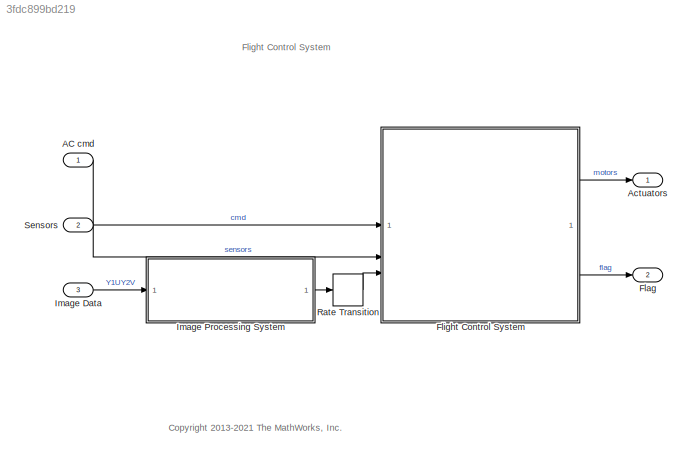
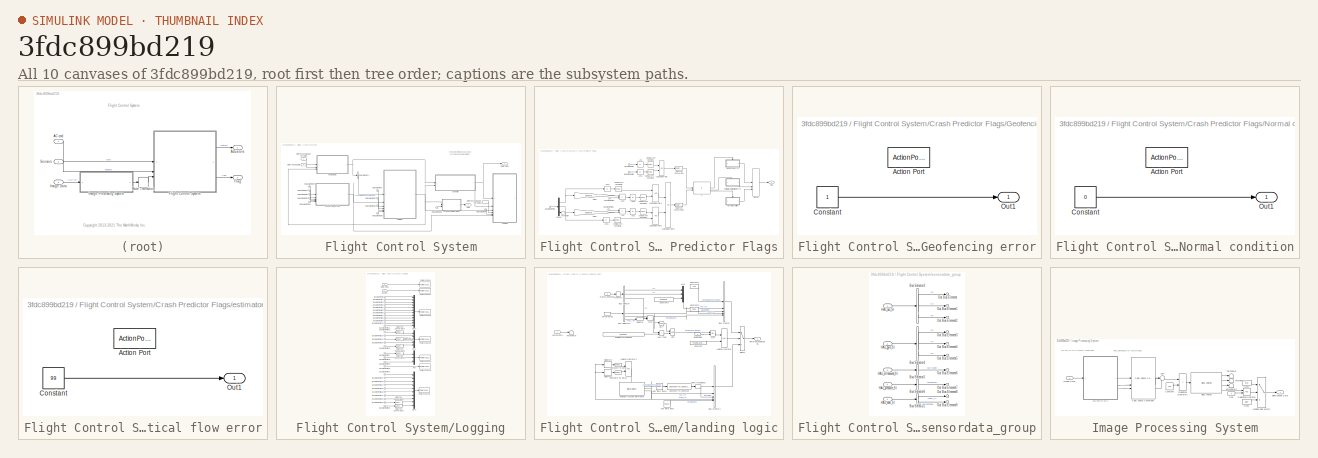
[diagram: thumbnail index - all 10 canvases of the model, root first then tree order]
MODEL slx_3fdc899bd219
KIND model
CONFIG AbsTol = auto
CONFIG EnableMultiTasking = on
CONFIG FixedStep = Ts
CONFIG MaxStep = auto
CONFIG MinStep = auto
CONFIG RelTol = 1e-3
CONFIG SampleTimeConstraint = Unconstrained
CONFIG SolverName = ode3
CONFIG StartTime = 0
CONFIG StopTime = TFinal
BLOCK [Inport] AC cmd
  BusOutputAsStruct = on
  OutDataTypeStr = Bus: CommandBus
BLOCK [Outport] Actuators
  OutDataTypeStr = single
  PortDimensions = 4
  VectorParamsAs1DForOutWhenUnconnected = off
BLOCK [Outport] Flag
  OutDataTypeStr = uint8
  Port = 2
  PortDimensions = 1
  VectorParamsAs1DForOutWhenUnconnected = off
BLOCK [SubSystem] Flight Control System
  RTWSystemCode = Reusable function
  SystemSampleTime = Ts
  TreatAsAtomicUnit = on
BLOCK [BusSelector] Flight Control System/Bus Selector1
  OutputSignals = controlModePosVSOrient
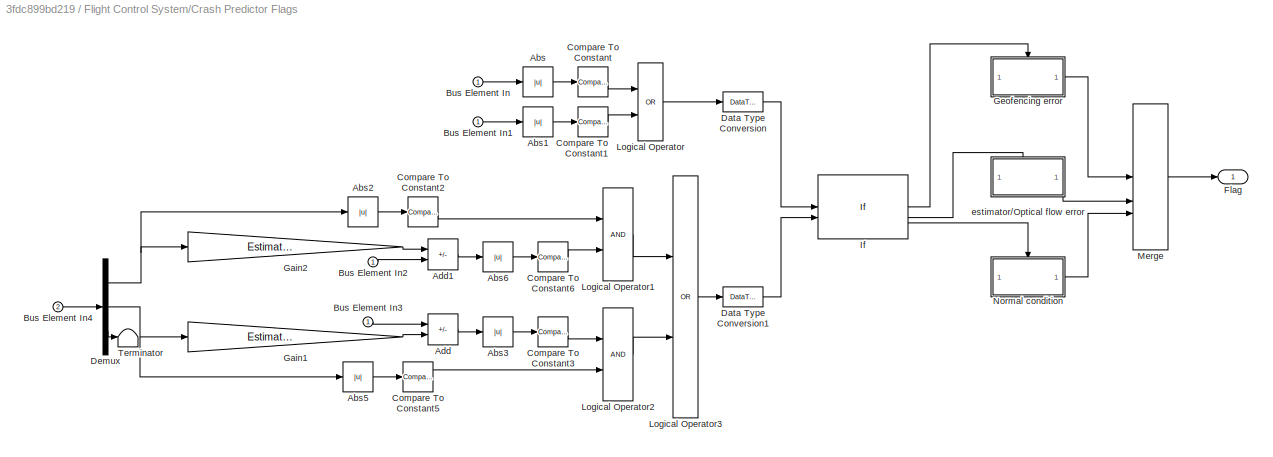
BLOCK [SubSystem] Flight Control System/Crash Predictor Flags
BLOCK [Abs] Flight Control System/Crash Predictor Flags/Abs
  SaturateOnIntegerOverflow = off
BLOCK [Abs] Flight Control System/Crash Predictor Flags/Abs1
  SaturateOnIntegerOverflow = off
BLOCK [Abs] Flight Control System/Crash Predictor Flags/Abs2
  SaturateOnIntegerOverflow = off
BLOCK [Abs] Flight Control System/Crash Predictor Flags/Abs3
  SaturateOnIntegerOverflow = off
BLOCK [Abs] Flight Control System/Crash Predictor Flags/Abs5
  SaturateOnIntegerOverflow = off
BLOCK [Abs] Flight Control System/Crash Predictor Flags/Abs6
  SaturateOnIntegerOverflow = off
BLOCK [Sum] Flight Control System/Crash Predictor Flags/Add
  IconShape = rectangular
  Inputs = -+
BLOCK [Sum] Flight Control System/Crash Predictor Flags/Add1
  IconShape = rectangular
  Inputs = +-
BLOCK [Inport] Flight Control System/Crash Predictor Flags/Bus Element In
BLOCK [Inport] Flight Control System/Crash Predictor Flags/Bus Element In1
BLOCK [Inport] Flight Control System/Crash Predictor Flags/Bus Element In2
BLOCK [Inport] Flight Control System/Crash Predictor Flags/Bus Element In3
BLOCK [Inport] Flight Control System/Crash Predictor Flags/Bus Element In4
  Port = 2
BLOCK [Reference] Flight Control System/Crash Predictor Flags/Compare To Constant  REF=simulink/Logic and Bit
Operations/Compare
To Constant
  SourceBlock = simulink/Logic and Bit\nOperations/Compare\nTo Constant
  SourceType = Compare To Constant
BLOCK [Reference] Flight Control System/Crash Predictor Flags/Compare To Constant1  REF=simulink/Logic and Bit
Operations/Compare
To Constant
  SourceBlock = simulink/Logic and Bit\nOperations/Compare\nTo Constant
  SourceType = Compare To Constant
BLOCK [Reference] Flight Control System/Crash Predictor Flags/Compare To Constant2  REF=simulink/Logic and Bit
Operations/Compare
To Constant
  SourceBlock = simulink/Logic and Bit\nOperations/Compare\nTo Constant
  SourceType = Compare To Constant
BLOCK [Reference] Flight Control System/Crash Predictor Flags/Compare To Constant3  REF=simulink/Logic and Bit
Operations/Compare
To Constant
  SourceBlock = simulink/Logic and Bit\nOperations/Compare\nTo Constant
  SourceType = Compare To Constant
BLOCK [Reference] Flight Control System/Crash Predictor Flags/Compare To Constant5  REF=simulink/Logic and Bit
Operations/Compare
To Constant
  SourceBlock = simulink/Logic and Bit\nOperations/Compare\nTo Constant
  SourceType = Compare To Constant
BLOCK [Reference] Flight Control System/Crash Predictor Flags/Compare To Constant6  REF=simulink/Logic and Bit
Operations/Compare
To Constant
  SourceBlock = simulink/Logic and Bit\nOperations/Compare\nTo Constant
  SourceType = Compare To Constant
BLOCK [DataTypeConversion] Flight Control System/Crash Predictor Flags/Data Type Conversion
  OutDataTypeStr = uint8
  RndMeth = Nearest
  SaturateOnIntegerOverflow = off
BLOCK [DataTypeConversion] Flight Control System/Crash Predictor Flags/Data Type Conversion1
  OutDataTypeStr = uint8
  RndMeth = Nearest
  SaturateOnIntegerOverflow = off
BLOCK [Demux] Flight Control System/Crash Predictor Flags/Demux
  Outputs = 3
BLOCK [Outport] Flight Control System/Crash Predictor Flags/Flag
  VectorParamsAs1DForOutWhenUnconnected = off
BLOCK [Gain] Flight Control System/Crash Predictor Flags/Gain1
  Gain = Estimator.pos.visDeltaXYMax
BLOCK [Gain] Flight Control System/Crash Predictor Flags/Gain2
  Gain = Estimator.pos.visDeltaXYMax
BLOCK [SubSystem] Flight Control System/Crash Predictor Flags/Geofencing error
  TreatAsAtomicUnit = on
BLOCK [ActionPort] Flight Control System/Crash Predictor Flags/Geofencing error/Action Port
  ActionPortLabel = if(u1 > 0)
BLOCK [Constant] Flight Control System/Crash Predictor Flags/Geofencing error/Constant
  OutDataTypeStr = uint8
BLOCK [Outport] Flight Control System/Crash Predictor Flags/Geofencing error/Out1
  VectorParamsAs1DForOutWhenUnconnected = off
BLOCK [If] Flight Control System/Crash Predictor Flags/If
  ElseIfExpressions = u2 > 0
  NumInputs = 2
BLOCK [Logic] Flight Control System/Crash Predictor Flags/Logical Operator
  AllPortsSameDT = off
  Operator = OR
BLOCK [Logic] Flight Control System/Crash Predictor Flags/Logical Operator1
  AllPortsSameDT = off
  OutDataTypeStr = boolean
BLOCK [Logic] Flight Control System/Crash Predictor Flags/Logical Operator2
  AllPortsSameDT = off
  OutDataTypeStr = boolean
BLOCK [Logic] Flight Control System/Crash Predictor Flags/Logical Operator3
  AllPortsSameDT = off
  Operator = OR
BLOCK [Merge] Flight Control System/Crash Predictor Flags/Merge
  InitialOutput = 0
  Inputs = 3
BLOCK [SubSystem] Flight Control System/Crash Predictor Flags/Normal condition
  TreatAsAtomicUnit = on
BLOCK [ActionPort] Flight Control System/Crash Predictor Flags/Normal condition/Action Port
  ActionPortLabel = else
BLOCK [Constant] Flight Control System/Crash Predictor Flags/Normal condition/Constant
  OutDataTypeStr = uint8
  Value = 0
BLOCK [Outport] Flight Control System/Crash Predictor Flags/Normal condition/Out1
  VectorParamsAs1DForOutWhenUnconnected = off
BLOCK [Terminator] Flight Control System/Crash Predictor Flags/Terminator
BLOCK [SubSystem] Flight Control System/Crash Predictor Flags/estimator//Optical flow error
  TreatAsAtomicUnit = on
BLOCK [ActionPort] Flight Control System/Crash Predictor Flags/estimator//Optical flow error/Action Port
  ActionPortLabel = elseif(u2 > 0)
BLOCK [Constant] Flight Control System/Crash Predictor Flags/estimator//Optical flow error/Constant
  OutDataTypeStr = uint8
  Value = 99
BLOCK [Outport] Flight Control System/Crash Predictor Flags/estimator//Optical flow error/Out1
  VectorParamsAs1DForOutWhenUnconnected = off
BLOCK [Outport] Flight Control System/Flag
  Port = 2
  VectorParamsAs1DForOutWhenUnconnected = off
BLOCK [Inport] Flight Control System/In Bus Element
  Port = 2
BLOCK [Inport] Flight Control System/In Bus Element1
  Port = 2
BLOCK [Inport] Flight Control System/In Bus Element10
  Port = 2
BLOCK [Inport] Flight Control System/In Bus Element2
  Port = 2
BLOCK [Inport] Flight Control System/In Bus Element3
  Port = 2
BLOCK [Inport] Flight Control System/In Bus Element4
  Port = 2
BLOCK [Inport] Flight Control System/In Bus Element5
  Port = 2
BLOCK [Inport] Flight Control System/In Bus Element6
  Port = 2
BLOCK [Inport] Flight Control System/In Bus Element7
  Port = 2
BLOCK [Inport] Flight Control System/In Bus Element8
  Port = 2
BLOCK [Inport] Flight Control System/In Bus Element9
  Port = 2
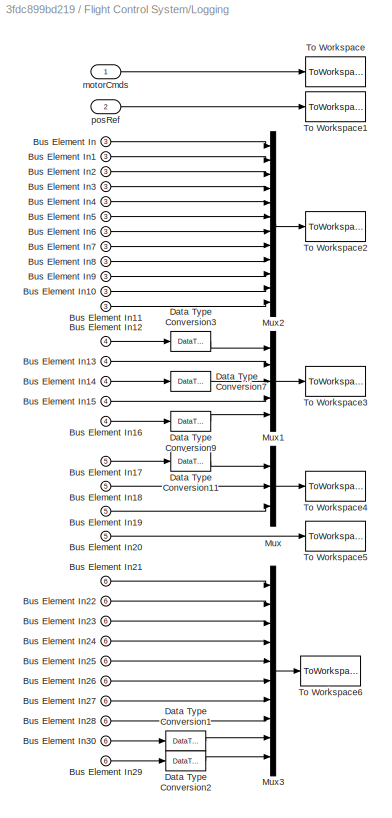
BLOCK [SubSystem] Flight Control System/Logging
  RTWFcnNameOpts = Use subsystem name
  RTWSystemCode = Reusable function
  TreatAsAtomicUnit = on
BLOCK [Inport] Flight Control System/Logging/Bus Element In
  Port = 3
BLOCK [Inport] Flight Control System/Logging/Bus Element In1
  Port = 3
BLOCK [Inport] Flight Control System/Logging/Bus Element In10
  Port = 3
BLOCK [Inport] Flight Control System/Logging/Bus Element In11
  Port = 3
BLOCK [Inport] Flight Control System/Logging/Bus Element In12
  Port = 4
BLOCK [Inport] Flight Control System/Logging/Bus Element In13
  Port = 4
BLOCK [Inport] Flight Control System/Logging/Bus Element In14
  Port = 4
BLOCK [Inport] Flight Control System/Logging/Bus Element In15
  Port = 4
BLOCK [Inport] Flight Control System/Logging/Bus Element In16
  Port = 4
BLOCK [Inport] Flight Control System/Logging/Bus Element In17
  Port = 5
BLOCK [Inport] Flight Control System/Logging/Bus Element In18
  Port = 5
BLOCK [Inport] Flight Control System/Logging/Bus Element In19
  Port = 5
BLOCK [Inport] Flight Control System/Logging/Bus Element In2
  Port = 3
BLOCK [Inport] Flight Control System/Logging/Bus Element In20
  Port = 5
BLOCK [Inport] Flight Control System/Logging/Bus Element In21
  Port = 6
BLOCK [Inport] Flight Control System/Logging/Bus Element In22
  Port = 6
BLOCK [Inport] Flight Control System/Logging/Bus Element In23
  Port = 6
BLOCK [Inport] Flight Control System/Logging/Bus Element In24
  Port = 6
BLOCK [Inport] Flight Control System/Logging/Bus Element In25
  Port = 6
BLOCK [Inport] Flight Control System/Logging/Bus Element In26
  Port = 6
BLOCK [Inport] Flight Control System/Logging/Bus Element In27
  Port = 6
BLOCK [Inport] Flight Control System/Logging/Bus Element In28
  Port = 6
BLOCK [Inport] Flight Control System/Logging/Bus Element In29
  Port = 6
BLOCK [Inport] Flight Control System/Logging/Bus Element In3
  Port = 3
BLOCK [Inport] Flight Control System/Logging/Bus Element In30
  Port = 6
BLOCK [Inport] Flight Control System/Logging/Bus Element In4
  Port = 3
BLOCK [Inport] Flight Control System/Logging/Bus Element In5
  Port = 3
BLOCK [Inport] Flight Control System/Logging/Bus Element In6
  Port = 3
BLOCK [Inport] Flight Control System/Logging/Bus Element In7
  Port = 3
BLOCK [Inport] Flight Control System/Logging/Bus Element In8
  Port = 3
BLOCK [Inport] Flight Control System/Logging/Bus Element In9
  Port = 3
BLOCK [DataTypeConversion] Flight Control System/Logging/Data Type Conversion1
  OutDataTypeStr = single
  RndMeth = Floor
  SaturateOnIntegerOverflow = off
BLOCK [DataTypeConversion] Flight Control System/Logging/Data Type Conversion11
  OutDataTypeStr = single
  RndMeth = Floor
  SaturateOnIntegerOverflow = off
BLOCK [DataTypeConversion] Flight Control System/Logging/Data Type Conversion2
  OutDataTypeStr = single
  RndMeth = Floor
  SaturateOnIntegerOverflow = off
BLOCK [DataTypeConversion] Flight Control System/Logging/Data Type Conversion3
  OutDataTypeStr = single
  RndMeth = Floor
  SaturateOnIntegerOverflow = off
BLOCK [DataTypeConversion] Flight Control System/Logging/Data Type Conversion7
  OutDataTypeStr = single
  RndMeth = Floor
  SaturateOnIntegerOverflow = off
BLOCK [DataTypeConversion] Flight Control System/Logging/Data Type Conversion9
  OutDataTypeStr = single
  RndMeth = Floor
  SaturateOnIntegerOverflow = off
BLOCK [Mux] Flight Control System/Logging/Mux
  DisplayOption = bar
  Inputs = 3
BLOCK [Mux] Flight Control System/Logging/Mux1
  DisplayOption = bar
  Inputs = 5
BLOCK [Mux] Flight Control System/Logging/Mux2
  DisplayOption = bar
  Inputs = 12
BLOCK [Mux] Flight Control System/Logging/Mux3
  DisplayOption = bar
  Inputs = 10
BLOCK [ToWorkspace] Flight Control System/Logging/To Workspace
  FixptAsFi = on
  MaxDataPoints = inf
  SampleTime = -1
  SaveFormat = Structure With Time
  VariableName = motor
BLOCK [ToWorkspace] Flight Control System/Logging/To Workspace1
  FixptAsFi = on
  MaxDataPoints = inf
  SampleTime = -1
  SaveFormat = Structure With Time
  VariableName = posref
BLOCK [ToWorkspace] Flight Control System/Logging/To Workspace2
  FixptAsFi = on
  MaxDataPoints = inf
  SampleTime = -1
  SaveFormat = Structure With Time
  VariableName = estim
BLOCK [ToWorkspace] Flight Control System/Logging/To Workspace3
  FixptAsFi = on
  MaxDataPoints = inf
  SampleTime = -1
  SaveFormat = Structure With Time
  VariableName = cmd
BLOCK [ToWorkspace] Flight Control System/Logging/To Workspace4
  FixptAsFi = on
  MaxDataPoints = inf
  SampleTime = -1
  SaveFormat = Structure With Time
  VariableName = optical
BLOCK [ToWorkspace] Flight Control System/Logging/To Workspace5
  Decimation = 100
  FixptAsFi = on
  MaxDataPoints = inf
  SampleTime = -1
  SaveFormat = Structure With Time
  VariableName = calib
BLOCK [ToWorkspace] Flight Control System/Logging/To Workspace6
  FixptAsFi = on
  MaxDataPoints = inf
  SampleTime = -1
  SaveFormat = Structure With Time
  VariableName = sensor
BLOCK [Inport] Flight Control System/Logging/motorCmds
BLOCK [Inport] Flight Control System/Logging/posRef
  Port = 2
BLOCK [Inport] Flight Control System/ReferenceValueServerCmds
  OutDataTypeStr = Bus: CommandBus
BLOCK [InportShadow] Flight Control System/ReferenceValueServerCmds1
  OutDataTypeStr = Bus: CommandBus
BLOCK [Inport] Flight Control System/Vision-based Data
  Port = 3
BLOCK [ModelReference] Flight Control System/controller
  ModelNameDialog = flightController.slx
  ModelReferenceVersion = 7.1
BLOCK [ModelReference] Flight Control System/estimator
  ModelNameDialog = stateEstimator.slx
  ModelReferenceVersion = 7.1
BLOCK [SubSystem] Flight Control System/landing logic
BLOCK [Logic] Flight Control System/landing logic/AND
  AllPortsSameDT = off
  IconShape = distinctive
  OutDataTypeStr = boolean
BLOCK [BusCreator] Flight Control System/landing logic/Bus Creator
  DisplayOption = bar
  InheritFromInputs = on
  Inputs = 5
  NonVirtualBus = on
  OutDataTypeStr = Bus: CommandBus
BLOCK [BusCreator] Flight Control System/landing logic/Bus Creator1
  DisplayOption = bar
  InheritFromInputs = on
  Inputs = 5
  NonVirtualBus = on
  OutDataTypeStr = Bus: CommandBus
BLOCK [BusSelector] Flight Control System/landing logic/Bus Selector
  OutputSignals = X,Y,Z
BLOCK [BusSelector] Flight Control System/landing logic/Bus Selector2
  OutputSignals = takeoff_flag,live_time_ticks,pos_ref
BLOCK [Reference] Flight Control System/landing logic/Compare To Constant  REF=simulink/Logic and Bit
Operations/Compare
To Constant
  SourceBlock = simulink/Logic and Bit\nOperations/Compare\nTo Constant
  SourceType = Compare To Constant
BLOCK [Reference] Flight Control System/landing logic/Compare To Zero  REF=simulink/Logic and Bit
Operations/Compare
To Zero
  SourceBlock = simulink/Logic and Bit\nOperations/Compare\nTo Zero
  SourceType = Compare To Zero
BLOCK [Reference] Flight Control System/landing logic/Compare To Zero1  REF=simulink/Logic and Bit
Operations/Compare
To Zero
  SourceBlock = simulink/Logic and Bit\nOperations/Compare\nTo Zero
  SourceType = Compare To Zero
BLOCK [Constant] Flight Control System/landing logic/Constant
  OutDataTypeStr = boolean
  Value = enableLanding
BLOCK [Constant] Flight Control System/landing logic/Constant1
  OutDataTypeStr = boolean
  Value = true
BLOCK [Constant] Flight Control System/landing logic/Constant2
  OutDataTypeStr = single
  Value = landingAltitude
BLOCK [Constant] Flight Control System/landing logic/Constant3
  OutDataTypeStr = single
  Value = [0 0 0]
BLOCK [RelationalOperator] Flight Control System/landing logic/Less Than
  InputSameDT = off
  Operator = >
  OutDataTypeStr = boolean
  RndMeth = Simplest
BLOCK [Reference] Flight Control System/landing logic/Live Time Ticks  REF=simulink/Sources/Counter
Free-Running
  SourceBlock = simulink/Sources/Counter\nFree-Running
  SourceType = Counter Free-Running
BLOCK [Reference] Flight Control System/landing logic/Live Time Ticks1  REF=simulink/Sources/Counter
Free-Running
  SourceBlock = simulink/Sources/Counter\nFree-Running
  SourceType = Counter Free-Running
BLOCK [Logic] Flight Control System/landing logic/Logical Operator
  AllPortsSameDT = off
  OutDataTypeStr = boolean
BLOCK [Logic] Flight Control System/landing logic/Logical Operator1
  AllPortsSameDT = off
  OutDataTypeStr = boolean
BLOCK [MinMax] Flight Control System/landing logic/Max
  Inputs = 2
BLOCK [Memory] Flight Control System/landing logic/Memory
  InheritSampleTime = on
BLOCK [Mux] Flight Control System/landing logic/Mux
  DisplayOption = bar
  Inputs = 3
BLOCK [Logic] Flight Control System/landing logic/NOT
  AllPortsSameDT = off
  IconShape = distinctive
  Operator = NOT
  OutDataTypeStr = boolean
BLOCK [Logic] Flight Control System/landing logic/OR
  AllPortsSameDT = off
  IconShape = distinctive
  Operator = OR
  OutDataTypeStr = boolean
BLOCK [Reference] Flight Control System/landing logic/Position//Attitude Reference  REF=SignalEditorBlockLib/Signal Editor
  SourceBlock = SignalEditorBlockLib/Signal Editor
  SourceType = SignalEditor
  UserDataPersistent = on
BLOCK [RateTransition] Flight Control System/landing logic/Rate Transition3
  OutPortSampleTime = Ts
BLOCK [Outport] Flight Control System/landing logic/ReferenceValueCmds
  OutDataTypeStr = Bus: CommandBus
  VectorParamsAs1DForOutWhenUnconnected = off
BLOCK [Selector] Flight Control System/landing logic/Selector
  IndexOptions = Index vector (dialog)
  Indices = 3
  InputPortWidth = 3
  OutputSizes = 1
BLOCK [Selector] Flight Control System/landing logic/Selector1
  IndexOptions = Index vector (dialog)
  Indices = 2
  InputPortWidth = 3
  OutputSizes = 1
BLOCK [Selector] Flight Control System/landing logic/Selector2
  IndexOptions = Index vector (dialog)
  Indices = 3
  InputPortWidth = 3
  OutputSizes = 1
BLOCK [Switch] Flight Control System/landing logic/Switch
  Criteria = u2 > Threshold
  InputSameDT = off
  SaturateOnIntegerOverflow = off
BLOCK [Terminator] Flight Control System/landing logic/Terminator
BLOCK [Inport] Flight Control System/landing logic/landingFlag
  Port = 2
BLOCK [Constant] Flight Control System/landing logic/landingOverrideLimit
  Value = landingAltitude-measurementTolerance
BLOCK [Inport] Flight Control System/landing logic/serverCmd
  OutDataTypeStr = Bus: CommandBus
BLOCK [InportShadow] Flight Control System/landing logic/serverCmd2
  OutDataTypeStr = Bus: CommandBus
BLOCK [Inport] Flight Control System/landing logic/states_estimout
  OutDataTypeStr = Bus: statesEstim_t
  Port = 3
BLOCK [Outport] Flight Control System/motorCmds
  VectorParamsAs1DForOutWhenUnconnected = off
BLOCK [SubSystem] Flight Control System/sensordata_group
BLOCK [BusSelector] Flight Control System/sensordata_group/Bus Selector1
  OutputSignals = vbat_V,vbat_percentage
BLOCK [BusSelector] Flight Control System/sensordata_group/Bus Selector3
  OutputSignals = x,y,z
BLOCK [BusSelector] Flight Control System/sensordata_group/Bus Selector4
  OutputSignals = x,y,z
BLOCK [BusSelector] Flight Control System/sensordata_group/Bus Selector5
  OutputSignals = altitude
BLOCK [BusSelector] Flight Control System/sensordata_group/Bus Selector6
  OutputSignals = pressure
BLOCK [Inport] Flight Control System/sensordata_group/HAL_acc_SI
  OutDataTypeStr = Bus: HAL_acc_SI_t
BLOCK [Inport] Flight Control System/sensordata_group/HAL_gyro_SI
  OutDataTypeStr = Bus: HAL_gyro_SI_t
  Port = 2
BLOCK [Inport] Flight Control System/sensordata_group/HAL_pressure_SI
  OutDataTypeStr = Bus: HAL_pressure_SI_t
  Port = 4
BLOCK [Inport] Flight Control System/sensordata_group/HAL_ultrasound_SI
  OutDataTypeStr = Bus: HAL_ultrasound_SI_t
  Port = 3
BLOCK [Inport] Flight Control System/sensordata_group/HAL_vbat_SI
  OutDataTypeStr = Bus: HAL_vbat_SI_t
  Port = 5
BLOCK [Outport] Flight Control System/sensordata_group/Out Bus Element
  VectorParamsAs1DForOutWhenUnconnected = off
BLOCK [Outport] Flight Control System/sensordata_group/Out Bus Element1
  VectorParamsAs1DForOutWhenUnconnected = off
BLOCK [Outport] Flight Control System/sensordata_group/Out Bus Element2
  VectorParamsAs1DForOutWhenUnconnected = off
BLOCK [Outport] Flight Control System/sensordata_group/Out Bus Element3
  VectorParamsAs1DForOutWhenUnconnected = off
BLOCK [Outport] Flight Control System/sensordata_group/Out Bus Element4
  VectorParamsAs1DForOutWhenUnconnected = off
BLOCK [Outport] Flight Control System/sensordata_group/Out Bus Element5
  VectorParamsAs1DForOutWhenUnconnected = off
BLOCK [Outport] Flight Control System/sensordata_group/Out Bus Element6
  VectorParamsAs1DForOutWhenUnconnected = off
BLOCK [Outport] Flight Control System/sensordata_group/Out Bus Element7
  VectorParamsAs1DForOutWhenUnconnected = off
BLOCK [Outport] Flight Control System/sensordata_group/Out Bus Element8
  VectorParamsAs1DForOutWhenUnconnected = off
BLOCK [Outport] Flight Control System/sensordata_group/Out Bus Element9
  VectorParamsAs1DForOutWhenUnconnected = off
BLOCK [Inport] Image Data
  BusOutputAsStruct = on
  InitFcn = codertarget.parrot.internal.inportCallback(gcb);
  OutDataTypeStr = uint8
  Port = 3
  PortDimensions = [4 9600]
  Tag = IP_IN
BLOCK [SubSystem] Image Processing System
  InitFcn = codertarget.parrot.internal.ipSubsystemCallback(gcb);
  RTWFcnName = ImageFunction
  RTWFcnNameOpts = User specified
  RTWSystemCode = Inline
  SystemSampleTime = 40*Ts
  Tag = IP_SUB
  TreatAsAtomicUnit = on
  TreatAsGroupedWhenPropagatingVariantConditions = off
BLOCK [Reference] Image Processing System/Blob Analysis  REF=visionstatistics/Blob Analysis
  SourceBlock = visionstatistics/Blob Analysis
  SourceType = Blob Analysis
  Tag = vipblks_row_conv
BLOCK [Reference] Image Processing System/Color Space Conversion  REF=visionconversions/Color Space
 Conversion
  SourceBlock = visionconversions/Color Space\n Conversion
  SourceType = Color Space Conversion
BLOCK [Constant] Image Processing System/Constant
  OutDataTypeStr = uint8
  Value = 100
BLOCK [Inport] Image Processing System/Image Data
BLOCK [Switch] Image Processing System/Landing Flag switch
  Criteria = u2 > Threshold
  InputSameDT = off
  SaturateOnIntegerOverflow = off
BLOCK [Constant] Image Processing System/One
  OutDataTypeStr = Inherit: Inherit via back propagation
BLOCK [Constant] Image Processing System/One1
  OutDataTypeStr = Inherit: Inherit via back propagation
  Value = true
BLOCK [Constant] Image Processing System/One2
  OutDataTypeStr = Inherit: Inherit via back propagation
  Value = false
BLOCK [RelationalOperator] Image Processing System/Relational Operator
  InputSameDT = off
  OutDataTypeStr = boolean
  RndMeth = Simplest
BLOCK [RelationalOperator] Image Processing System/Relational Operator1
  InputSameDT = off
  Operator = >
  OutDataTypeStr = boolean
  RndMeth = Simplest
BLOCK [Sum] Image Processing System/Sum
  Inputs = +--
  SaturateOnIntegerOverflow = on
BLOCK [Terminator] Image Processing System/Terminator
BLOCK [Terminator] Image Processing System/Terminator1
BLOCK [Terminator] Image Processing System/Terminator2
BLOCK [Outport] Image Processing System/Vision-based Data
  VectorParamsAs1DForOutWhenUnconnected = off
BLOCK [ModelReference] Image Processing System/Y1UY2V to YUV
  ModelNameDialog = conversionYUV.slx
  ModelReferenceVersion = 7.0
BLOCK [RateTransition] Rate Transition
  Deterministic = off
BLOCK [Inport] Sensors
  BusOutputAsStruct = on
  OutDataTypeStr = Bus: SensorsBus
  Port = 2
ANNOTATION (root): <copyright redacted>
ANNOTATION (root): Flight Control System
ANNOTATION Flight Control System: Derived from the work by Sertac Karaman and Fabian Riether
ANNOTATION Image Processing System: Find dominance of red in image
ANNOTATION Image Processing System: Y1UY2V to YUV format conversion
LINE AC cmd:1 -> Flight Control System:1
LINE Flight Control System/Bus Selector1:1 -> Flight Control System/estimator:1
LINE Flight Control System/Crash Predictor Flags/Abs1:1 -> Flight Control System/Crash Predictor Flags/Compare To Constant1:1
LINE Flight Control System/Crash Predictor Flags/Abs2:1 -> Flight Control System/Crash Predictor Flags/Compare To Constant2:1
LINE Flight Control System/Crash Predictor Flags/Abs3:1 -> Flight Control System/Crash Predictor Flags/Compare To Constant3:1
LINE Flight Control System/Crash Predictor Flags/Abs5:1 -> Flight Control System/Crash Predictor Flags/Compare To Constant5:1
LINE Flight Control System/Crash Predictor Flags/Abs6:1 -> Flight Control System/Crash Predictor Flags/Compare To Constant6:1
LINE Flight Control System/Crash Predictor Flags/Abs:1 -> Flight Control System/Crash Predictor Flags/Compare To Constant:1
LINE Flight Control System/Crash Predictor Flags/Add1:1 -> Flight Control System/Crash Predictor Flags/Abs6:1
LINE Flight Control System/Crash Predictor Flags/Add:1 -> Flight Control System/Crash Predictor Flags/Abs3:1
LINE Flight Control System/Crash Predictor Flags/Bus Element In1:1 -> Flight Control System/Crash Predictor Flags/Abs1:1
LINE Flight Control System/Crash Predictor Flags/Bus Element In2:1 -> Flight Control System/Crash Predictor Flags/Add1:2
LINE Flight Control System/Crash Predictor Flags/Bus Element In3:1 -> Flight Control System/Crash Predictor Flags/Add:1
LINE Flight Control System/Crash Predictor Flags/Bus Element In4:1 -> Flight Control System/Crash Predictor Flags/Demux:1
LINE Flight Control System/Crash Predictor Flags/Bus Element In:1 -> Flight Control System/Crash Predictor Flags/Abs:1
LINE Flight Control System/Crash Predictor Flags/Compare To Constant1:1 -> Flight Control System/Crash Predictor Flags/Logical Operator:2
LINE Flight Control System/Crash Predictor Flags/Compare To Constant2:1 -> Flight Control System/Crash Predictor Flags/Logical Operator1:1
LINE Flight Control System/Crash Predictor Flags/Compare To Constant3:1 -> Flight Control System/Crash Predictor Flags/Logical Operator2:1
LINE Flight Control System/Crash Predictor Flags/Compare To Constant5:1 -> Flight Control System/Crash Predictor Flags/Logical Operator2:2
LINE Flight Control System/Crash Predictor Flags/Compare To Constant6:1 -> Flight Control System/Crash Predictor Flags/Logical Operator1:2
LINE Flight Control System/Crash Predictor Flags/Compare To Constant:1 -> Flight Control System/Crash Predictor Flags/Logical Operator:1
LINE Flight Control System/Crash Predictor Flags/Data Type Conversion1:1 -> Flight Control System/Crash Predictor Flags/If:2
LINE Flight Control System/Crash Predictor Flags/Data Type Conversion:1 -> Flight Control System/Crash Predictor Flags/If:1
NET Flight Control System/Crash Predictor Flags/Demux:1 -> Flight Control System/Crash Predictor Flags/Abs2:1, Flight Control System/Crash Predictor Flags/Gain2:1
NET Flight Control System/Crash Predictor Flags/Demux:2 -> Flight Control System/Crash Predictor Flags/Abs5:1, Flight Control System/Crash Predictor Flags/Gain1:1
LINE Flight Control System/Crash Predictor Flags/Demux:3 -> Flight Control System/Crash Predictor Flags/Terminator:1
LINE Flight Control System/Crash Predictor Flags/Gain1:1 -> Flight Control System/Crash Predictor Flags/Add:2
LINE Flight Control System/Crash Predictor Flags/Gain2:1 -> Flight Control System/Crash Predictor Flags/Add1:1
LINE Flight Control System/Crash Predictor Flags/Geofencing error/Constant:1 -> Flight Control System/Crash Predictor Flags/Geofencing error/Out1:1
LINE Flight Control System/Crash Predictor Flags/Geofencing error:1 -> Flight Control System/Crash Predictor Flags/Merge:1
LINE Flight Control System/Crash Predictor Flags/If:1 -> Flight Control System/Crash Predictor Flags/Geofencing error:ifaction
LINE Flight Control System/Crash Predictor Flags/If:2 -> Flight Control System/Crash Predictor Flags/estimator//Optical flow error:ifaction
LINE Flight Control System/Crash Predictor Flags/If:3 -> Flight Control System/Crash Predictor Flags/Normal condition:ifaction
LINE Flight Control System/Crash Predictor Flags/Logical Operator1:1 -> Flight Control System/Crash Predictor Flags/Logical Operator3:1
LINE Flight Control System/Crash Predictor Flags/Logical Operator2:1 -> Flight Control System/Crash Predictor Flags/Logical Operator3:2
LINE Flight Control System/Crash Predictor Flags/Logical Operator3:1 -> Flight Control System/Crash Predictor Flags/Data Type Conversion1:1
LINE Flight Control System/Crash Predictor Flags/Logical Operator:1 -> Flight Control System/Crash Predictor Flags/Data Type Conversion:1
LINE Flight Control System/Crash Predictor Flags/Merge:1 -> Flight Control System/Crash Predictor Flags/Flag:1
LINE Flight Control System/Crash Predictor Flags/Normal condition/Constant:1 -> Flight Control System/Crash Predictor Flags/Normal condition/Out1:1
LINE Flight Control System/Crash Predictor Flags/Normal condition:1 -> Flight Control System/Crash Predictor Flags/Merge:3
LINE Flight Control System/Crash Predictor Flags/estimator//Optical flow error/Constant:1 -> Flight Control System/Crash Predictor Flags/estimator//Optical flow error/Out1:1
LINE Flight Control System/Crash Predictor Flags/estimator//Optical flow error:1 -> Flight Control System/Crash Predictor Flags/Merge:2
LINE Flight Control System/Crash Predictor Flags:1 -> Flight Control System/Flag:1
LINE Flight Control System/In Bus Element10:1 -> Flight Control System/sensordata_group:5
LINE Flight Control System/In Bus Element1:1 -> Flight Control System/estimator:4
LINE Flight Control System/In Bus Element2:1 -> Flight Control System/estimator:5
LINE Flight Control System/In Bus Element3:1 -> Flight Control System/estimator:6
LINE Flight Control System/In Bus Element4:1 -> Flight Control System/sensordata_group:1
LINE Flight Control System/In Bus Element5:1 -> Flight Control System/Crash Predictor Flags:2
LINE Flight Control System/In Bus Element6:1 -> Flight Control System/Logging:5
LINE Flight Control System/In Bus Element7:1 -> Flight Control System/sensordata_group:2
LINE Flight Control System/In Bus Element8:1 -> Flight Control System/sensordata_group:3
LINE Flight Control System/In Bus Element9:1 -> Flight Control System/sensordata_group:4
LINE Flight Control System/In Bus Element:1 -> Flight Control System/estimator:3
LINE Flight Control System/Logging/Bus Element In10:1 -> Flight Control System/Logging/Mux2:11
LINE Flight Control System/Logging/Bus Element In11:1 -> Flight Control System/Logging/Mux2:12
LINE Flight Control System/Logging/Bus Element In12:1 -> Flight Control System/Logging/Data Type Conversion3:1
LINE Flight Control System/Logging/Bus Element In13:1 -> Flight Control System/Logging/Mux1:2
LINE Flight Control System/Logging/Bus Element In14:1 -> Flight Control System/Logging/Data Type Conversion7:1
LINE Flight Control System/Logging/Bus Element In15:1 -> Flight Control System/Logging/Mux1:4
LINE Flight Control System/Logging/Bus Element In16:1 -> Flight Control System/Logging/Data Type Conversion9:1
LINE Flight Control System/Logging/Bus Element In17:1 -> Flight Control System/Logging/Data Type Conversion11:1
LINE Flight Control System/Logging/Bus Element In18:1 -> Flight Control System/Logging/Mux:2
LINE Flight Control System/Logging/Bus Element In19:1 -> Flight Control System/Logging/Mux:3
LINE Flight Control System/Logging/Bus Element In1:1 -> Flight Control System/Logging/Mux2:2
LINE Flight Control System/Logging/Bus Element In20:1 -> Flight Control System/Logging/To Workspace5:1
LINE Flight Control System/Logging/Bus Element In21:1 -> Flight Control System/Logging/Mux3:1
LINE Flight Control System/Logging/Bus Element In22:1 -> Flight Control System/Logging/Mux3:2
LINE Flight Control System/Logging/Bus Element In23:1 -> Flight Control System/Logging/Mux3:3
LINE Flight Control System/Logging/Bus Element In24:1 -> Flight Control System/Logging/Mux3:4
LINE Flight Control System/Logging/Bus Element In25:1 -> Flight Control System/Logging/Mux3:5
LINE Flight Control System/Logging/Bus Element In26:1 -> Flight Control System/Logging/Mux3:6
LINE Flight Control System/Logging/Bus Element In27:1 -> Flight Control System/Logging/Mux3:7
LINE Flight Control System/Logging/Bus Element In28:1 -> Flight Control System/Logging/Mux3:8
LINE Flight Control System/Logging/Bus Element In29:1 -> Flight Control System/Logging/Data Type Conversion2:1
LINE Flight Control System/Logging/Bus Element In2:1 -> Flight Control System/Logging/Mux2:3
LINE Flight Control System/Logging/Bus Element In30:1 -> Flight Control System/Logging/Data Type Conversion1:1
LINE Flight Control System/Logging/Bus Element In3:1 -> Flight Control System/Logging/Mux2:4
LINE Flight Control System/Logging/Bus Element In4:1 -> Flight Control System/Logging/Mux2:5
LINE Flight Control System/Logging/Bus Element In5:1 -> Flight Control System/Logging/Mux2:6
LINE Flight Control System/Logging/Bus Element In6:1 -> Flight Control System/Logging/Mux2:7
LINE Flight Control System/Logging/Bus Element In7:1 -> Flight Control System/Logging/Mux2:8
LINE Flight Control System/Logging/Bus Element In8:1 -> Flight Control System/Logging/Mux2:9
LINE Flight Control System/Logging/Bus Element In9:1 -> Flight Control System/Logging/Mux2:10
LINE Flight Control System/Logging/Bus Element In:1 -> Flight Control System/Logging/Mux2:1
LINE Flight Control System/Logging/Data Type Conversion11:1 -> Flight Control System/Logging/Mux:1
LINE Flight Control System/Logging/Data Type Conversion1:1 -> Flight Control System/Logging/Mux3:9
LINE Flight Control System/Logging/Data Type Conversion2:1 -> Flight Control System/Logging/Mux3:10
LINE Flight Control System/Logging/Data Type Conversion3:1 -> Flight Control System/Logging/Mux1:1
LINE Flight Control System/Logging/Data Type Conversion7:1 -> Flight Control System/Logging/Mux1:3
LINE Flight Control System/Logging/Data Type Conversion9:1 -> Flight Control System/Logging/Mux1:5
LINE Flight Control System/Logging/Mux1:1 -> Flight Control System/Logging/To Workspace3:1
LINE Flight Control System/Logging/Mux2:1 -> Flight Control System/Logging/To Workspace2:1
LINE Flight Control System/Logging/Mux3:1 -> Flight Control System/Logging/To Workspace6:1
LINE Flight Control System/Logging/Mux:1 -> Flight Control System/Logging/To Workspace4:1
LINE Flight Control System/Logging/motorCmds:1 -> Flight Control System/Logging/To Workspace:1
LINE Flight Control System/Logging/posRef:1 -> Flight Control System/Logging/To Workspace1:1
LINE Flight Control System/ReferenceValueServerCmds1:1 -> Flight Control System/Logging:4
LINE Flight Control System/ReferenceValueServerCmds:1 -> Flight Control System/landing logic:1
LINE Flight Control System/Vision-based Data:1 -> Flight Control System/landing logic:2
NET Flight Control System/controller:1 -> Flight Control System/Logging:1, Flight Control System/motorCmds:1
LINE Flight Control System/controller:2 -> Flight Control System/Logging:2
NET Flight Control System/estimator:1 -> Flight Control System/Crash Predictor Flags:1, Flight Control System/Logging:3, Flight Control System/controller:2, Flight Control System/landing logic:3
LINE Flight Control System/landing logic/AND:1 -> Flight Control System/landing logic/OR:1
LINE Flight Control System/landing logic/Bus Creator1:1 -> Flight Control System/landing logic/Switch:3
LINE Flight Control System/landing logic/Bus Creator:1 -> Flight Control System/landing logic/Switch:1
NET Flight Control System/landing logic/Bus Selector2:1 -> Flight Control System/landing logic/Bus Creator:3, Flight Control System/landing logic/NOT:1
LINE Flight Control System/landing logic/Bus Selector2:2 -> Flight Control System/landing logic/Bus Creator:5
LINE Flight Control System/landing logic/Bus Selector2:3 -> Flight Control System/landing logic/Selector:1
LINE Flight Control System/landing logic/Bus Selector:1 -> Flight Control System/landing logic/Mux:1
LINE Flight Control System/landing logic/Bus Selector:2 -> Flight Control System/landing logic/Mux:2
LINE Flight Control System/landing logic/Bus Selector:3 -> Flight Control System/landing logic/Max:1
LINE Flight Control System/landing logic/Compare To Constant:1 -> Flight Control System/landing logic/Rate Transition3:1
LINE Flight Control System/landing logic/Compare To Zero1:1 -> Flight Control System/landing logic/Logical Operator1:2
LINE Flight Control System/landing logic/Compare To Zero:1 -> Flight Control System/landing logic/Logical Operator1:1
LINE Flight Control System/landing logic/Constant1:1 -> Flight Control System/landing logic/Bus Creator:1
LINE Flight Control System/landing logic/Constant2:1 -> Flight Control System/landing logic/Mux:3
LINE Flight Control System/landing logic/Constant3:1 -> Flight Control System/landing logic/Bus Creator:4
LINE Flight Control System/landing logic/Constant:1 -> Flight Control System/landing logic/Logical Operator:2
LINE Flight Control System/landing logic/Less Than:1 -> Flight Control System/landing logic/AND:2
LINE Flight Control System/landing logic/Live Time Ticks1:1 -> Flight Control System/landing logic/Compare To Constant:1
LINE Flight Control System/landing logic/Live Time Ticks:1 -> Flight Control System/landing logic/Bus Creator1:5
LINE Flight Control System/landing logic/Logical Operator1:1 -> Flight Control System/landing logic/Bus Creator1:1
LINE Flight Control System/landing logic/Logical Operator:1 -> Flight Control System/landing logic/Switch:2
LINE Flight Control System/landing logic/Max:1 -> Flight Control System/landing logic/Less Than:1
LINE Flight Control System/landing logic/Memory:1 -> Flight Control System/landing logic/Bus Selector:1
LINE Flight Control System/landing logic/Mux:1 -> Flight Control System/landing logic/Bus Creator:2
LINE Flight Control System/landing logic/NOT:1 -> Flight Control System/landing logic/AND:1
LINE Flight Control System/landing logic/OR:1 -> Flight Control System/landing logic/Logical Operator:1
LINE Flight Control System/landing logic/Position//Attitude Reference:1 -> Flight Control System/landing logic/Bus Creator1:2
NET Flight Control System/landing logic/Position//Attitude Reference:2 -> Flight Control System/landing logic/Bus Creator1:4, Flight Control System/landing logic/Selector1:1, Flight Control System/landing logic/Selector2:1
LINE Flight Control System/landing logic/Rate Transition3:1 -> Flight Control System/landing logic/Bus Creator1:3
LINE Flight Control System/landing logic/Selector1:1 -> Flight Control System/landing logic/Compare To Zero1:1
LINE Flight Control System/landing logic/Selector2:1 -> Flight Control System/landing logic/Compare To Zero:1
LINE Flight Control System/landing logic/Selector:1 -> Flight Control System/landing logic/Max:2
LINE Flight Control System/landing logic/Switch:1 -> Flight Control System/landing logic/ReferenceValueCmds:1
LINE Flight Control System/landing logic/landingFlag:1 -> Flight Control System/landing logic/OR:2
LINE Flight Control System/landing logic/landingOverrideLimit:1 -> Flight Control System/landing logic/Less Than:2
LINE Flight Control System/landing logic/serverCmd2:1 -> Flight Control System/landing logic/Bus Selector2:1
LINE Flight Control System/landing logic/serverCmd:1 -> Flight Control System/landing logic/Terminator:1
LINE Flight Control System/landing logic/states_estimout:1 -> Flight Control System/landing logic/Memory:1
NET Flight Control System/landing logic:1 -> Flight Control System/Bus Selector1:1, Flight Control System/controller:1
LINE Flight Control System/sensordata_group/Bus Selector1:1 -> Flight Control System/sensordata_group/Out Bus Element8:1
LINE Flight Control System/sensordata_group/Bus Selector1:2 -> Flight Control System/sensordata_group/Out Bus Element9:1
LINE Flight Control System/sensordata_group/Bus Selector3:1 -> Flight Control System/sensordata_group/Out Bus Element:1
LINE Flight Control System/sensordata_group/Bus Selector3:2 -> Flight Control System/sensordata_group/Out Bus Element1:1
LINE Flight Control System/sensordata_group/Bus Selector3:3 -> Flight Control System/sensordata_group/Out Bus Element2:1
LINE Flight Control System/sensordata_group/Bus Selector4:1 -> Flight Control System/sensordata_group/Out Bus Element3:1
LINE Flight Control System/sensordata_group/Bus Selector4:2 -> Flight Control System/sensordata_group/Out Bus Element4:1
LINE Flight Control System/sensordata_group/Bus Selector4:3 -> Flight Control System/sensordata_group/Out Bus Element5:1
LINE Flight Control System/sensordata_group/Bus Selector5:1 -> Flight Control System/sensordata_group/Out Bus Element6:1
LINE Flight Control System/sensordata_group/Bus Selector6:1 -> Flight Control System/sensordata_group/Out Bus Element7:1
LINE Flight Control System/sensordata_group/HAL_acc_SI:1 -> Flight Control System/sensordata_group/Bus Selector3:1
LINE Flight Control System/sensordata_group/HAL_gyro_SI:1 -> Flight Control System/sensordata_group/Bus Selector4:1
LINE Flight Control System/sensordata_group/HAL_pressure_SI:1 -> Flight Control System/sensordata_group/Bus Selector6:1
LINE Flight Control System/sensordata_group/HAL_ultrasound_SI:1 -> Flight Control System/sensordata_group/Bus Selector5:1
LINE Flight Control System/sensordata_group/HAL_vbat_SI:1 -> Flight Control System/sensordata_group/Bus Selector1:1
NET Flight Control System/sensordata_group:1 -> Flight Control System/Logging:6, Flight Control System/estimator:2
LINE Flight Control System:1 -> Actuators:1
LINE Flight Control System:2 -> Flag:1
LINE Image Data:1 -> Image Processing System:1
LINE Image Processing System/Blob Analysis:1 -> Image Processing System/Terminator:1
LINE Image Processing System/Blob Analysis:2 -> Image Processing System/Terminator1:1
LINE Image Processing System/Blob Analysis:3 -> Image Processing System/Terminator2:1
LINE Image Processing System/Blob Analysis:4 -> Image Processing System/Relational Operator:1
LINE Image Processing System/Color Space Conversion:1 -> Image Processing System/Sum:1
LINE Image Processing System/Color Space Conversion:2 -> Image Processing System/Sum:2
LINE Image Processing System/Color Space Conversion:3 -> Image Processing System/Sum:3
LINE Image Processing System/Constant:1 -> Image Processing System/Relational Operator1:2
LINE Image Processing System/Image Data:1 -> Image Processing System/Y1UY2V to YUV:1
LINE Image Processing System/Landing Flag switch:1 -> Image Processing System/Vision-based Data:1
LINE Image Processing System/One1:1 -> Image Processing System/Landing Flag switch:1
LINE Image Processing System/One2:1 -> Image Processing System/Landing Flag switch:3
LINE Image Processing System/One:1 -> Image Processing System/Relational Operator:2
LINE Image Processing System/Relational Operator1:1 -> Image Processing System/Blob Analysis:1
LINE Image Processing System/Relational Operator:1 -> Image Processing System/Landing Flag switch:2
LINE Image Processing System/Sum:1 -> Image Processing System/Relational Operator1:1
LINE Image Processing System/Y1UY2V to YUV:1 -> Image Processing System/Color Space Conversion:1
LINE Image Processing System/Y1UY2V to YUV:2 -> Image Processing System/Color Space Conversion:2
LINE Image Processing System/Y1UY2V to YUV:3 -> Image Processing System/Color Space Conversion:3
LINE Image Processing System:1 -> Rate Transition:1
LINE Rate Transition:1 -> Flight Control System:3
LINE Sensors:1 -> Flight Control System:2
note: NET lines group one-source signal fan-out (src -> all destinations, sorted); 1:1 wires keep LINE
